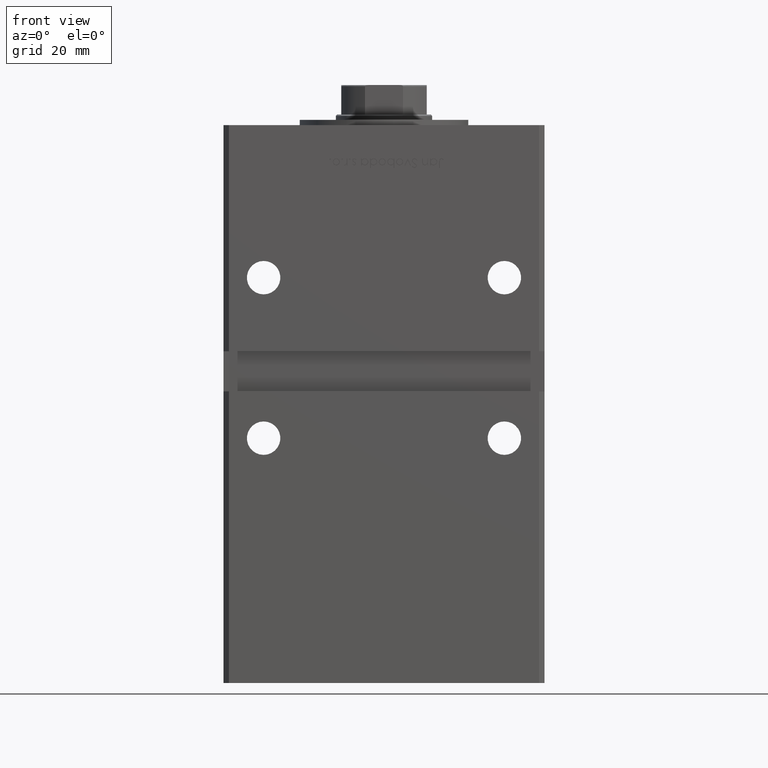
[diagram: clean part render]
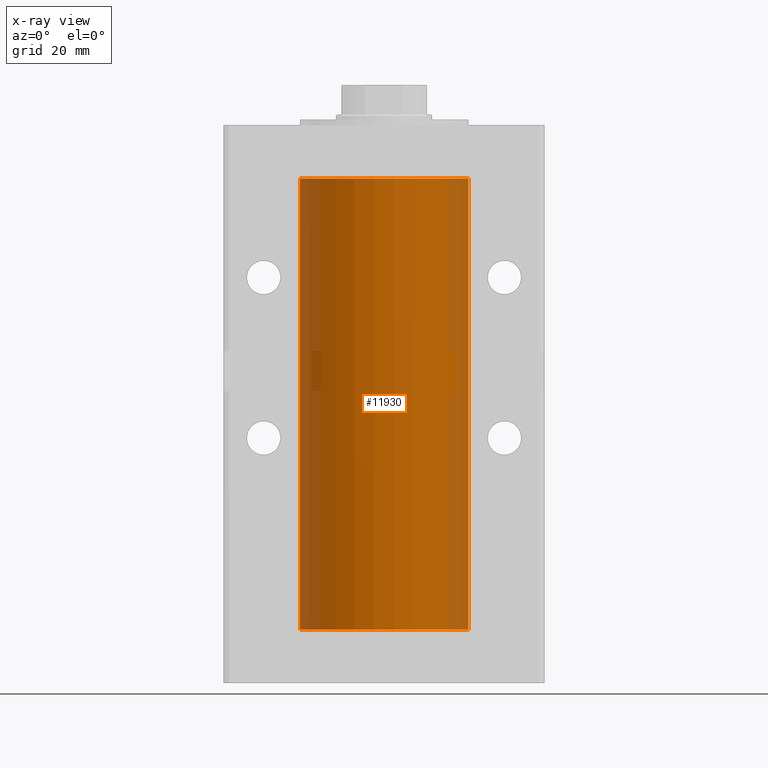
[diagram: x-ray — body ghosted, one internal face saturated and labeled with its STEP entity id]
A machine part, front view, then the same camera in x-ray: the body is ghosted and one INTERNAL B-rep face — a face not visible from any outside direction — is saturated and labeled: STEP entity #11930.
In plain terms, the highlighted cylindrical surface (partial cylindrical patch) has radius 31.5 mm, axis along (-0, -0, -1).
Its self-contained STEP definition (entity closure, byte-faithful):
#229 = EDGE_CURVE ( 'NONE', #16267, #19990, #32239, .T. ) ;
#1593 = ORIENTED_EDGE ( 'NONE', *, *, #229, .F. ) ;
#2684 = DIRECTION ( 'NONE',  ( -0.000000000000000000, -0.000000000000000000, -1.000000000000000000 ) ) ;
#3333 = DIRECTION ( 'NONE',  ( -0.000000000000000000, 0.000000000000000000, 1.000000000000000000 ) ) ;
#7812 = DIRECTION ( 'NONE',  ( -0.000000000000000000, -0.000000000000000000, -1.000000000000000000 ) ) ;
#8259 = VERTEX_POINT ( 'NONE', #31868 ) ;
#9134 = AXIS2_PLACEMENT_3D ( 'NONE', #42546, #47377, #10633 ) ;
#10633 = DIRECTION ( 'NONE',  ( 1.000000000000000000, 0.000000000000000000, 0.000000000000000000 ) ) ;
#11930 = ADVANCED_FACE ( 'NONE', ( #34644 ), #27108, .F. ) ;
#14376 = EDGE_CURVE ( 'NONE', #16267, #29384, #40370, .T. ) ;
#16004 = CARTESIAN_POINT ( 'NONE',  ( -31.50000000000000000, 0.000000000000000000, 0.000000000000000000 ) ) ;
#16225 = DIRECTION ( 'NONE',  ( 1.000000000000000000, 0.000000000000000000, 0.000000000000000000 ) ) ;
#16267 = VERTEX_POINT ( 'NONE', #36946 ) ;
#16370 = CARTESIAN_POINT ( 'NONE',  ( 31.50000000000000000, 3.857637417314162689E-15, 168.5000000000000000 ) ) ;
#19990 = VERTEX_POINT ( 'NONE', #16004 ) ;
#23057 = VECTOR ( 'NONE', #7812, 1000.000000000000000 ) ;
#23357 = DIRECTION ( 'NONE',  ( -1.000000000000000000, 0.000000000000000000, 0.000000000000000000 ) ) ;
#25652 = VECTOR ( 'NONE', #40495, 1000.000000000000000 ) ;
#26548 = ORIENTED_EDGE ( 'NONE', *, *, #14376, .T. ) ;
#27108 = CYLINDRICAL_SURFACE ( 'NONE', #42026, 31.50000000000000000 ) ;
#27603 = ORIENTED_EDGE ( 'NONE', *, *, #38344, .F. ) ;
#29384 = VERTEX_POINT ( 'NONE', #36222 ) ;
#31868 = CARTESIAN_POINT ( 'NONE',  ( 31.50000000000000000, 3.857637417314162689E-15, 0.000000000000000000 ) ) ;
#32239 = LINE ( 'NONE', #48594, #23057 ) ;
#32247 = CIRCLE ( 'NONE', #9134, 31.50000000000000000 ) ;
#33549 = AXIS2_PLACEMENT_3D ( 'NONE', #36339, #3333, #16225 ) ;
#34644 = FACE_OUTER_BOUND ( 'NONE', #47388, .T. ) ;
#36222 = CARTESIAN_POINT ( 'NONE',  ( 31.50000000000000000, 3.857637417314162689E-15, 168.5000000000000000 ) ) ;
#36339 = CARTESIAN_POINT ( 'NONE',  ( 0.000000000000000000, 0.000000000000000000, 168.5000000000000000 ) ) ;
#36946 = CARTESIAN_POINT ( 'NONE',  ( -31.50000000000000000, 0.000000000000000000, 168.5000000000000000 ) ) ;
#38344 = EDGE_CURVE ( 'NONE', #19990, #8259, #32247, .T. ) ;
#40370 = CIRCLE ( 'NONE', #33549, 31.50000000000000000 ) ;
#40495 = DIRECTION ( 'NONE',  ( -0.000000000000000000, -0.000000000000000000, -1.000000000000000000 ) ) ;
#42026 = AXIS2_PLACEMENT_3D ( 'NONE', #51274, #2684, #23357 ) ;
#42546 = CARTESIAN_POINT ( 'NONE',  ( 0.000000000000000000, 0.000000000000000000, 0.000000000000000000 ) ) ;
#43031 = ORIENTED_EDGE ( 'NONE', *, *, #45157, .T. ) ;
#45157 = EDGE_CURVE ( 'NONE', #29384, #8259, #53113, .T. ) ;
#47377 = DIRECTION ( 'NONE',  ( -0.000000000000000000, 0.000000000000000000, 1.000000000000000000 ) ) ;
#47388 = EDGE_LOOP ( 'NONE', ( #26548, #43031, #27603, #1593 ) ) ;
#48594 = CARTESIAN_POINT ( 'NONE',  ( -31.50000000000000000, 0.000000000000000000, 168.5000000000000000 ) ) ;
#51274 = CARTESIAN_POINT ( 'NONE',  ( 0.000000000000000000, 0.000000000000000000, 168.5000000000000000 ) ) ;
#53113 = LINE ( 'NONE', #16370, #25652 ) ;